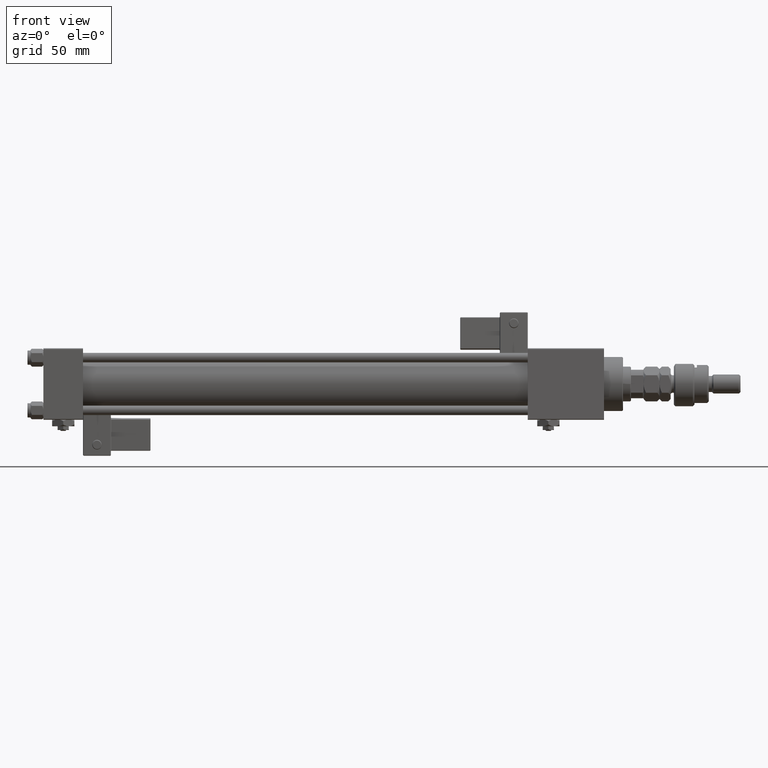
[diagram: clean part render]
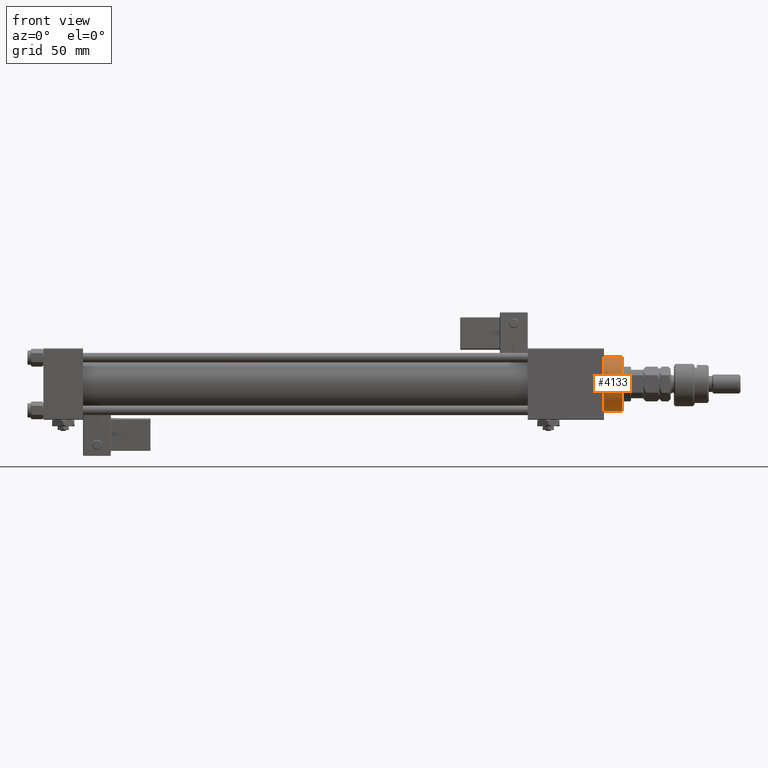
[diagram: same view with one face highlighted and labeled with its STEP entity id]
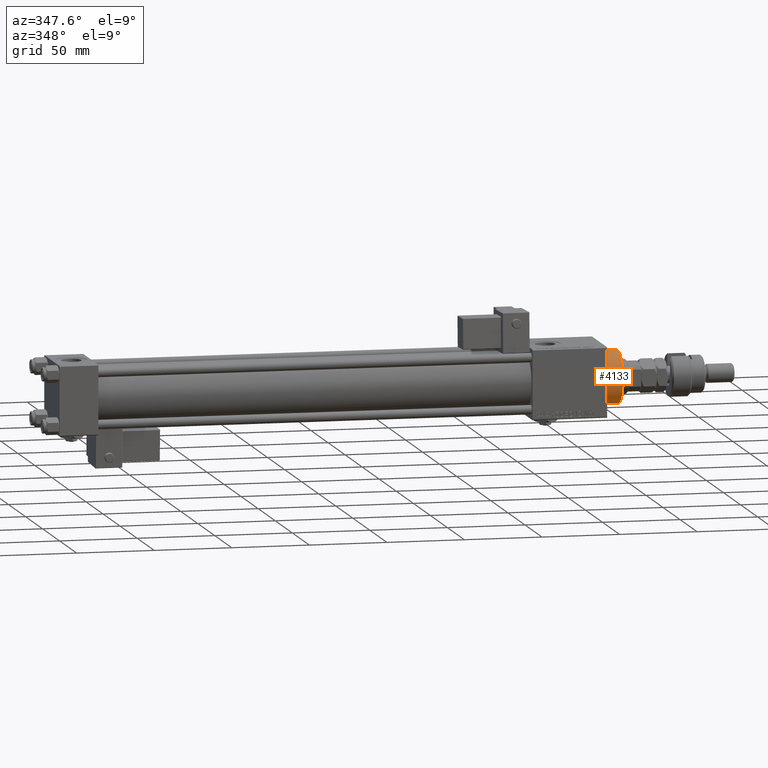
[diagram: same view with one face highlighted and labeled with its STEP entity id]
A machine part, front view. The second image highlights one B-rep face of the part: STEP entity #4133.
A second angle (auxiliary view) of the same face is appended — the face is thin or edge-on in the first view.
In plain terms, the highlighted cylindrical surface (edge-blend (fillet) strip) has radius 17 mm, axis along (-1, -0, -0).
Its self-contained STEP definition (entity closure, byte-faithful):
#42 = DIRECTION ( 'NONE',  ( -0.000000000000000000, -0.000000000000000000, -1.000000000000000000 ) ) ;
#1667 = CARTESIAN_POINT ( 'NONE',  ( 0.000000000000000000, 0.000000000000000000, 28.69999999999999929 ) ) ;
#4133 = ADVANCED_FACE ( 'NONE', ( #9624 ), #18054, .T. ) ;
#9624 = FACE_OUTER_BOUND ( 'NONE', #12792, .T. ) ;
#10595 = ORIENTED_EDGE ( 'NONE', *, *, #34217, .F. ) ;
#10703 = DIRECTION ( 'NONE',  ( 1.000000000000000000, 0.000000000000000000, 0.000000000000000000 ) ) ;
#11581 = AXIS2_PLACEMENT_3D ( 'NONE', #27335, #42, #35766 ) ;
#12792 = EDGE_LOOP ( 'NONE', ( #10595, #23121, #41876, #53215 ) ) ;
#13944 = CARTESIAN_POINT ( 'NONE',  ( -17.00000000000000000, 0.000000000000000000, 28.69999999999999929 ) ) ;
#14489 = CARTESIAN_POINT ( 'NONE',  ( 0.000000000000000000, 0.000000000000000000, 40.19999999999999574 ) ) ;
#15058 = CARTESIAN_POINT ( 'NONE',  ( 17.00000000000000000, 2.081899558550500280E-15, 40.19999999999999574 ) ) ;
#15128 = VERTEX_POINT ( 'NONE', #13944 ) ;
#18054 = CYLINDRICAL_SURFACE ( 'NONE', #11581, 17.00000000000000000 ) ;
#19154 = EDGE_CURVE ( 'NONE', #26532, #43545, #30613, .T. ) ;
#20603 = AXIS2_PLACEMENT_3D ( 'NONE', #1667, #41441, #42011 ) ;
#23121 = ORIENTED_EDGE ( 'NONE', *, *, #19154, .T. ) ;
#23806 = DIRECTION ( 'NONE',  ( -0.000000000000000000, -0.000000000000000000, -1.000000000000000000 ) ) ;
#26532 = VERTEX_POINT ( 'NONE', #15058 ) ;
#27335 = CARTESIAN_POINT ( 'NONE',  ( 0.000000000000000000, 0.000000000000000000, 40.70000000000000284 ) ) ;
#27841 = DIRECTION ( 'NONE',  ( 0.000000000000000000, 0.000000000000000000, -1.000000000000000000 ) ) ;
#30613 = CIRCLE ( 'NONE', #54753, 17.00000000000000000 ) ;
#32198 = CARTESIAN_POINT ( 'NONE',  ( 17.00000000000000000, 2.081899558550500280E-15, 28.69999999999999929 ) ) ;
#34217 = EDGE_CURVE ( 'NONE', #26532, #44162, #42367, .T. ) ;
#35766 = DIRECTION ( 'NONE',  ( -1.000000000000000000, 0.000000000000000000, 0.000000000000000000 ) ) ;
#37153 = CARTESIAN_POINT ( 'NONE',  ( 17.00000000000000000, 2.081899558550500280E-15, 40.70000000000000284 ) ) ;
#38450 = LINE ( 'NONE', #44259, #41501 ) ;
#38833 = EDGE_CURVE ( 'NONE', #43545, #15128, #38450, .T. ) ;
#41441 = DIRECTION ( 'NONE',  ( 0.000000000000000000, 0.000000000000000000, 1.000000000000000000 ) ) ;
#41501 = VECTOR ( 'NONE', #54121, 1000.000000000000000 ) ;
#41876 = ORIENTED_EDGE ( 'NONE', *, *, #38833, .T. ) ;
#42011 = DIRECTION ( 'NONE',  ( 1.000000000000000000, 0.000000000000000000, 0.000000000000000000 ) ) ;
#42367 = LINE ( 'NONE', #37153, #52424 ) ;
#43545 = VERTEX_POINT ( 'NONE', #53285 ) ;
#44162 = VERTEX_POINT ( 'NONE', #32198 ) ;
#44259 = CARTESIAN_POINT ( 'NONE',  ( -17.00000000000000000, 0.000000000000000000, 40.70000000000000284 ) ) ;
#45641 = CIRCLE ( 'NONE', #20603, 17.00000000000000000 ) ;
#52424 = VECTOR ( 'NONE', #23806, 1000.000000000000000 ) ;
#53215 = ORIENTED_EDGE ( 'NONE', *, *, #53655, .T. ) ;
#53285 = CARTESIAN_POINT ( 'NONE',  ( -17.00000000000000000, 0.000000000000000000, 40.19999999999999574 ) ) ;
#53655 = EDGE_CURVE ( 'NONE', #15128, #44162, #45641, .T. ) ;
#54121 = DIRECTION ( 'NONE',  ( -0.000000000000000000, -0.000000000000000000, -1.000000000000000000 ) ) ;
#54753 = AXIS2_PLACEMENT_3D ( 'NONE', #14489, #27841, #10703 ) ;